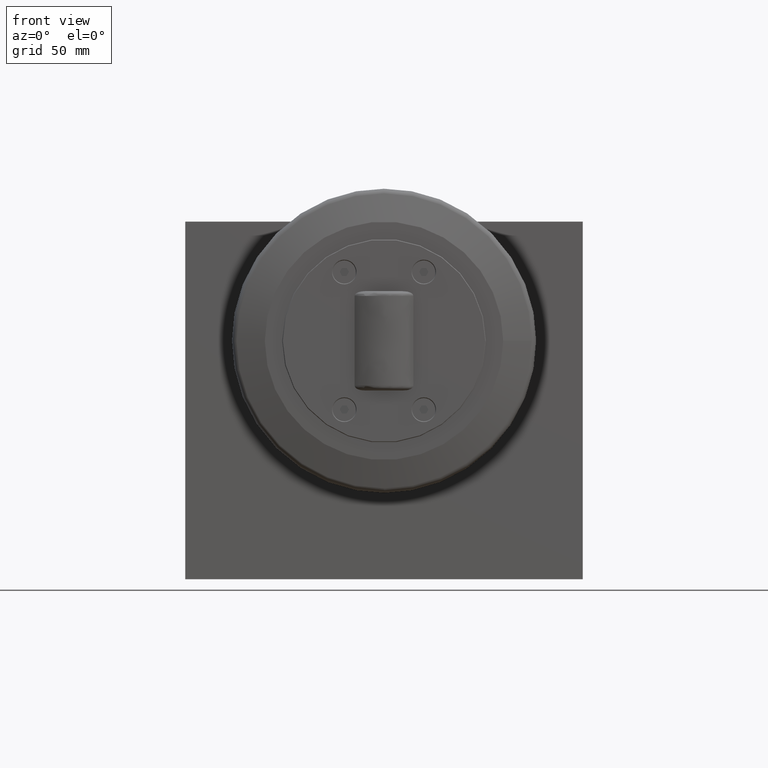
[diagram: clean part render]
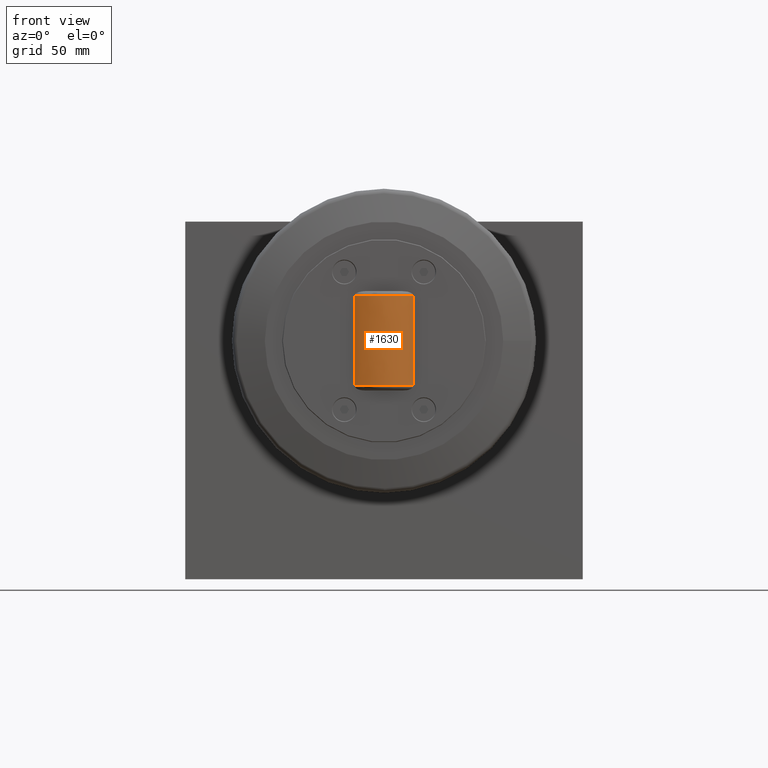
[diagram: same view with one face highlighted and labeled with its STEP entity id]
A machine part, front view. The second image highlights one B-rep face of the part: STEP entity #1630.
In plain terms, the highlighted face is a freeform B-spline surface patch.
Its self-contained STEP definition (entity closure, byte-faithful):
#16=B_SPLINE_CURVE_WITH_KNOTS('',3,(#2738,#2739,#2740,#2741,#2742,#2743),
 .UNSPECIFIED.,.F.,.F.,(4,2,4),(31.3011952163451,33.4563977051377,35.6116001939302),
 .UNSPECIFIED.);
#19=B_SPLINE_CURVE_WITH_KNOTS('',3,(#2769,#2770,#2771,#2772,#2773,#2774),
 .UNSPECIFIED.,.F.,.F.,(4,2,4),(8.99693007958673,11.1521325683792,13.3073350571718),
 .UNSPECIFIED.);
#30=(
BOUNDED_SURFACE()
B_SPLINE_SURFACE(2,2,((#2818,#2819,#2820),(#2821,#2822,#2823),(#2824,#2825,
#2826)),.UNSPECIFIED.,.F.,.F.,.F.)
B_SPLINE_SURFACE_WITH_KNOTS((3,3),(3,3),(-0.0150256071155659,0.0150256071155661),
(-2.15097697566236,-0.990615677927434),.UNSPECIFIED.)
GEOMETRIC_REPRESENTATION_ITEM()
RATIONAL_B_SPLINE_SURFACE(((1.,0.836363636363635,1.),(0.999887117689204,
0.836269225703697,0.999887117689204),(1.,0.836363636363635,1.)))
REPRESENTATION_ITEM('')
SURFACE()
);
#144=CIRCLE('',#1804,27.3306765338066);
#146=CIRCLE('',#1807,27.3306765338066);
#230=FACE_OUTER_BOUND('',#341,.T.);
#341=EDGE_LOOP('',(#1479,#1480,#1481,#1482));
#787=VERTEX_POINT('',#2726);
#788=VERTEX_POINT('',#2737);
#791=VERTEX_POINT('',#2757);
#792=VERTEX_POINT('',#2768);
#1007=EDGE_CURVE('',#787,#788,#16,.T.);
#1011=EDGE_CURVE('',#791,#792,#19,.T.);
#1028=EDGE_CURVE('',#788,#791,#144,.T.);
#1030=EDGE_CURVE('',#792,#787,#146,.T.);
#1479=ORIENTED_EDGE('',*,*,#1011,.F.);
#1480=ORIENTED_EDGE('',*,*,#1028,.F.);
#1481=ORIENTED_EDGE('',*,*,#1007,.F.);
#1482=ORIENTED_EDGE('',*,*,#1030,.F.);
#1630=ADVANCED_FACE('',(#230),#30,.F.);
#1804=AXIS2_PLACEMENT_3D('',#2815,#2264,#2265);
#1807=AXIS2_PLACEMENT_3D('',#2827,#2270,#2271);
#2264=DIRECTION('center_axis',(5.46795683394351E-16,-3.1121603506634E-17,
-1.));
#2265=DIRECTION('ref_axis',(-1.22460635382237E-16,-1.,8.2586756962287E-17));
#2270=DIRECTION('center_axis',(-5.46795683394351E-16,3.1121603506634E-17,
1.));
#2271=DIRECTION('ref_axis',(-1.22460635382237E-16,-1.,2.45074212880456E-16));
#2726=CARTESIAN_POINT('',(114.763667559098,-54.,142.537562604341));
#2737=CARTESIAN_POINT('',(114.763667559098,-54.,97.4624373956595));
#2738=CARTESIAN_POINT('Ctrl Pts',(114.763667559098,-54.,142.537562604341));
#2739=CARTESIAN_POINT('Ctrl Pts',(114.979587269857,-54.,134.775601698843));
#2740=CARTESIAN_POINT('Ctrl Pts',(115.074813431681,-54.,127.184008295975));
#2741=CARTESIAN_POINT('Ctrl Pts',(115.074813431681,-54.,112.815991704025));
#2742=CARTESIAN_POINT('Ctrl Pts',(114.979587269857,-54.,105.224398301157));
#2743=CARTESIAN_POINT('Ctrl Pts',(114.763667559098,-54.,97.4624373956595));
#2757=CARTESIAN_POINT('',(85.2363324409019,-54.,97.4624373956595));
#2768=CARTESIAN_POINT('',(85.2363324409019,-54.,142.537562604341));
#2769=CARTESIAN_POINT('Ctrl Pts',(85.2363324409023,-54.,97.4624373956595));
#2770=CARTESIAN_POINT('Ctrl Pts',(85.020412730143,-54.,105.224398301157));
#2771=CARTESIAN_POINT('Ctrl Pts',(84.9251865683187,-54.,112.815991704025));
#2772=CARTESIAN_POINT('Ctrl Pts',(84.9251865683187,-54.,127.184008295975));
#2773=CARTESIAN_POINT('Ctrl Pts',(85.0204127301429,-54.,134.775601698843));
#2774=CARTESIAN_POINT('Ctrl Pts',(85.2363324409022,-54.,142.537562604341));
#2815=CARTESIAN_POINT('Origin',(100.,-31.,97.4624373956595));
#2818=CARTESIAN_POINT('Ctrl Pts',(85.0180054651359,-53.8583840100926,97.4624373956595));
#2819=CARTESIAN_POINT('Ctrl Pts',(100.,-63.6779828121599,97.4624373956595));
#2820=CARTESIAN_POINT('Ctrl Pts',(114.981994534864,-53.8583840100926,97.4624373956595));
#2821=CARTESIAN_POINT('Ctrl Pts',(84.8323571927069,-54.1416319776523,120.));
#2822=CARTESIAN_POINT('Ctrl Pts',(100.,-64.0829096088839,120.));
#2823=CARTESIAN_POINT('Ctrl Pts',(115.167642807293,-54.1416319776523,120.));
#2824=CARTESIAN_POINT('Ctrl Pts',(85.0180054651358,-53.8583840100926,142.537562604341));
#2825=CARTESIAN_POINT('Ctrl Pts',(100.,-63.6779828121599,142.537562604341));
#2826=CARTESIAN_POINT('Ctrl Pts',(114.981994534864,-53.8583840100926,142.537562604341));
#2827=CARTESIAN_POINT('Origin',(100.,-31.,142.537562604341));